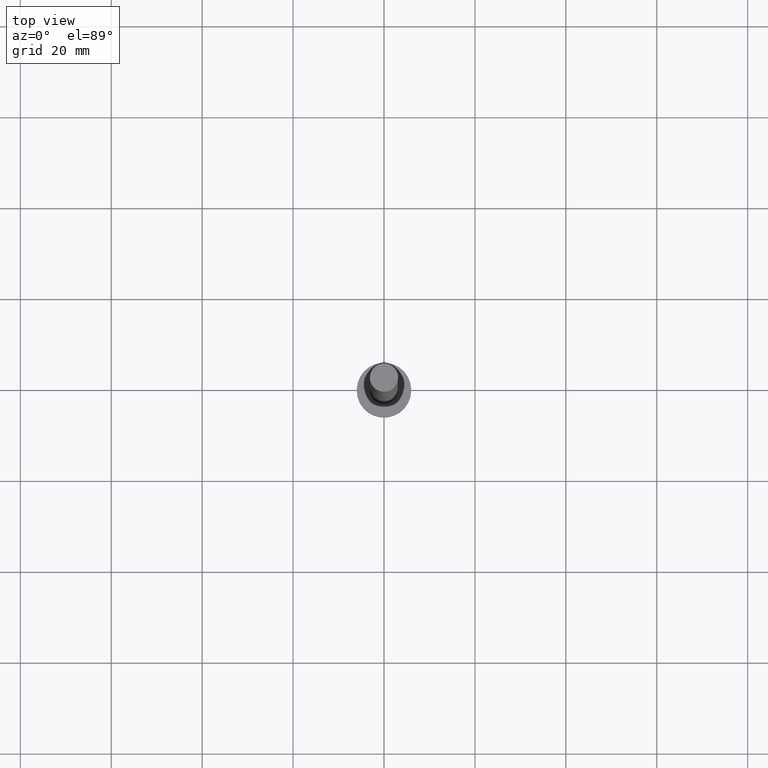
[diagram: clean part render]
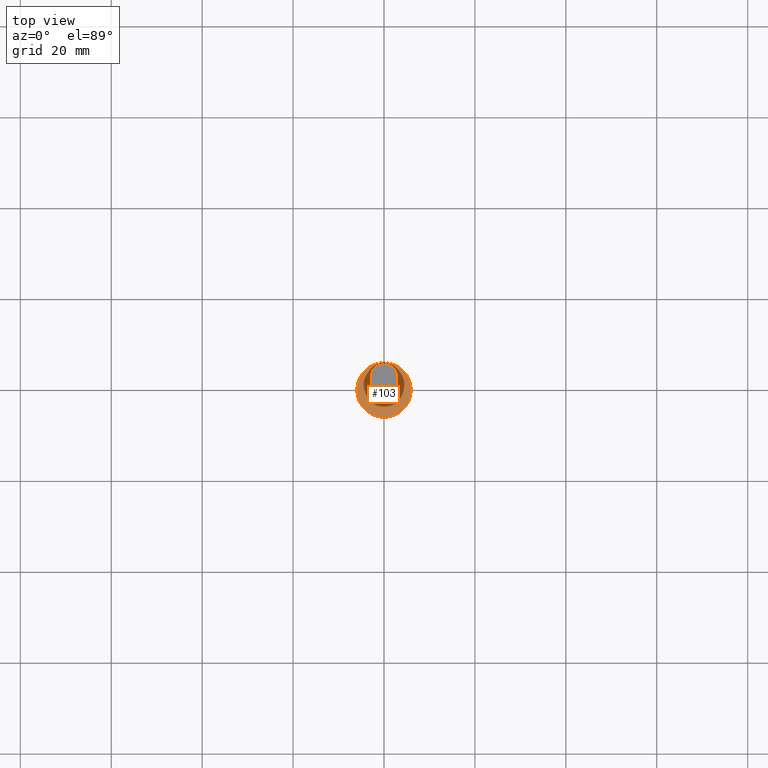
[diagram: same view with one face highlighted and labeled with its STEP entity id]
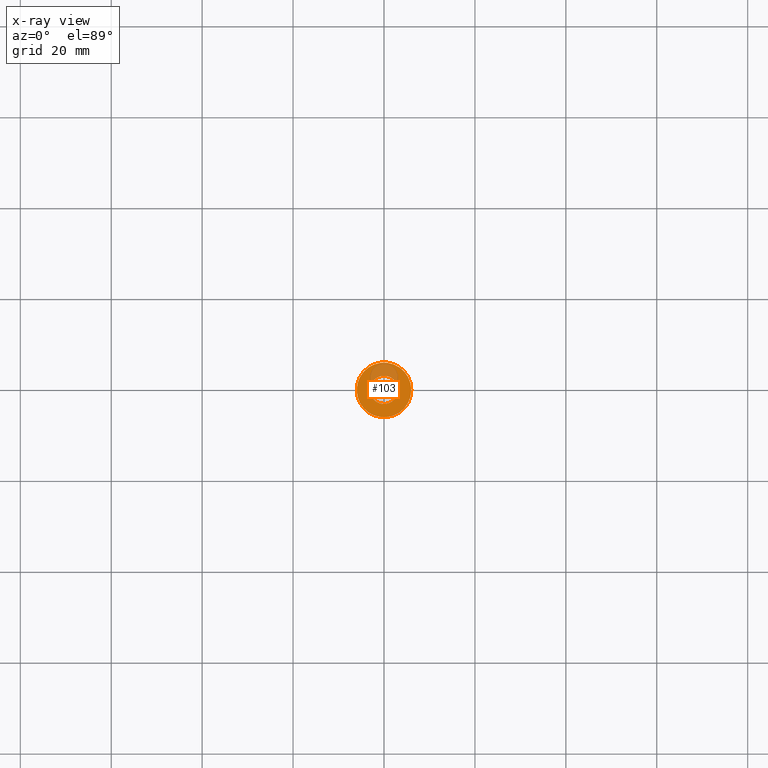
[diagram: x-ray of the same camera — body ghosted, the highlighted face saturated]
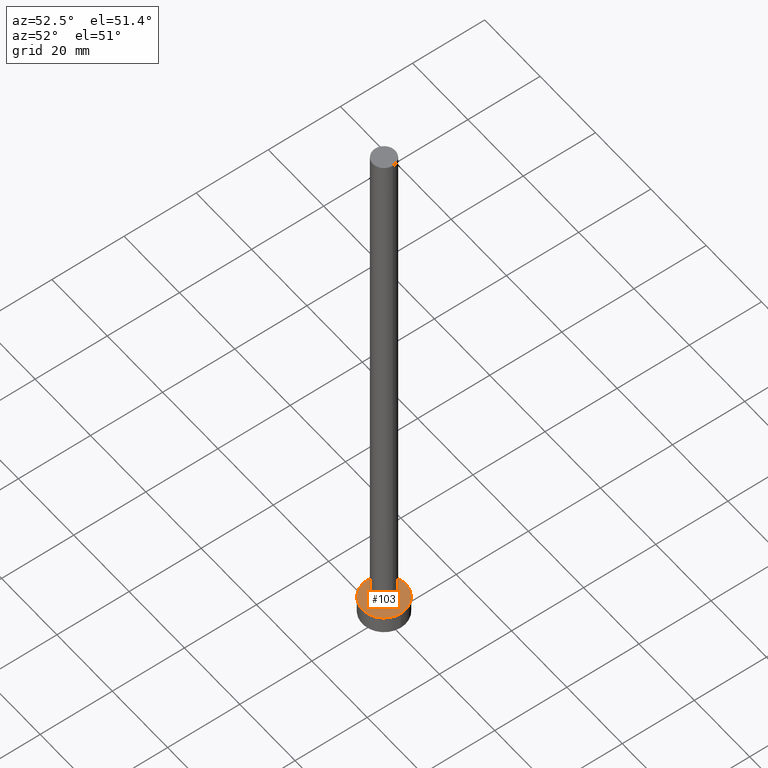
[diagram: same view with one face highlighted and labeled with its STEP entity id]
A machine part, top view. The second image highlights one B-rep face of the part: STEP entity #103.
The next image is the same camera in x-ray: the body ghosted, the highlighted face saturated — about 20% of this face is hidden behind the body in this view.
A second angle (auxiliary view) of the same face is appended — the face is thin or edge-on in the first view.
In plain terms, the highlighted planar face has unit normal (0, 0, 1).
Its self-contained STEP definition (entity closure, byte-faithful):
#5 = DIRECTION ( 'NONE',  ( 1.000000000000000000, 0.000000000000000000, 0.000000000000000000 ) ) ;
#6 = CARTESIAN_POINT ( 'NONE',  ( 0.000000000000000000, 0.000000000000000000, 5.000000000000000000 ) ) ;
#8 = FACE_BOUND ( 'NONE', #253, .T. ) ;
#12 = CIRCLE ( 'NONE', #243, 6.000000000000000888 ) ;
#17 = CARTESIAN_POINT ( 'NONE',  ( -6.000000000000000888, 0.000000000000000000, 5.000000000000000000 ) ) ;
#19 = CARTESIAN_POINT ( 'NONE',  ( 0.000000000000000000, 0.000000000000000000, 5.000000000000000000 ) ) ;
#20 = DIRECTION ( 'NONE',  ( 0.000000000000000000, 0.000000000000000000, 1.000000000000000000 ) ) ;
#23 = CARTESIAN_POINT ( 'NONE',  ( 6.000000000000000888, 7.347880794884120722E-16, 5.000000000000000000 ) ) ;
#25 = CARTESIAN_POINT ( 'NONE',  ( -3.100000000000000089, 0.000000000000000000, 5.000000000000000000 ) ) ;
#39 = ORIENTED_EDGE ( 'NONE', *, *, #140, .T. ) ;
#46 = CIRCLE ( 'NONE', #206, 6.000000000000000888 ) ;
#54 = VERTEX_POINT ( 'NONE', #17 ) ;
#61 = DIRECTION ( 'NONE',  ( 0.000000000000000000, 0.000000000000000000, 1.000000000000000000 ) ) ;
#76 = PLANE ( 'NONE',  #119 ) ;
#88 = EDGE_CURVE ( 'NONE', #54, #123, #12, .T. ) ;
#90 = DIRECTION ( 'NONE',  ( 1.000000000000000000, 0.000000000000000000, -0.000000000000000000 ) ) ;
#92 = DIRECTION ( 'NONE',  ( 0.000000000000000000, 0.000000000000000000, 1.000000000000000000 ) ) ;
#103 = ADVANCED_FACE ( 'NONE', ( #8, #137 ), #76, .T. ) ;
#104 = VERTEX_POINT ( 'NONE', #25 ) ;
#112 = CARTESIAN_POINT ( 'NONE',  ( 0.000000000000000000, 0.000000000000000000, 5.000000000000000000 ) ) ;
#114 = DIRECTION ( 'NONE',  ( 1.000000000000000000, 0.000000000000000000, 0.000000000000000000 ) ) ;
#119 = AXIS2_PLACEMENT_3D ( 'NONE', #6, #92, #90 ) ;
#121 = VERTEX_POINT ( 'NONE', #200 ) ;
#122 = CIRCLE ( 'NONE', #128, 3.100000000000000089 ) ;
#123 = VERTEX_POINT ( 'NONE', #23 ) ;
#128 = AXIS2_PLACEMENT_3D ( 'NONE', #221, #20, #5 ) ;
#129 = ORIENTED_EDGE ( 'NONE', *, *, #197, .F. ) ;
#137 = FACE_OUTER_BOUND ( 'NONE', #216, .T. ) ;
#140 = EDGE_CURVE ( 'NONE', #123, #54, #46, .T. ) ;
#146 = ORIENTED_EDGE ( 'NONE', *, *, #88, .T. ) ;
#152 = ORIENTED_EDGE ( 'NONE', *, *, #219, .F. ) ;
#160 = CARTESIAN_POINT ( 'NONE',  ( 0.000000000000000000, 0.000000000000000000, 5.000000000000000000 ) ) ;
#166 = CIRCLE ( 'NONE', #173, 3.100000000000000089 ) ;
#173 = AXIS2_PLACEMENT_3D ( 'NONE', #160, #244, #183 ) ;
#175 = DIRECTION ( 'NONE',  ( 0.000000000000000000, 0.000000000000000000, 1.000000000000000000 ) ) ;
#177 = DIRECTION ( 'NONE',  ( 1.000000000000000000, 0.000000000000000000, 0.000000000000000000 ) ) ;
#183 = DIRECTION ( 'NONE',  ( 1.000000000000000000, 0.000000000000000000, 0.000000000000000000 ) ) ;
#197 = EDGE_CURVE ( 'NONE', #121, #104, #122, .T. ) ;
#200 = CARTESIAN_POINT ( 'NONE',  ( 3.100000000000000089, 3.796405077356794918E-16, 5.000000000000000000 ) ) ;
#206 = AXIS2_PLACEMENT_3D ( 'NONE', #112, #61, #114 ) ;
#216 = EDGE_LOOP ( 'NONE', ( #146, #39 ) ) ;
#219 = EDGE_CURVE ( 'NONE', #104, #121, #166, .T. ) ;
#221 = CARTESIAN_POINT ( 'NONE',  ( 0.000000000000000000, 0.000000000000000000, 5.000000000000000000 ) ) ;
#243 = AXIS2_PLACEMENT_3D ( 'NONE', #19, #175, #177 ) ;
#244 = DIRECTION ( 'NONE',  ( 0.000000000000000000, 0.000000000000000000, 1.000000000000000000 ) ) ;
#253 = EDGE_LOOP ( 'NONE', ( #152, #129 ) ) ;